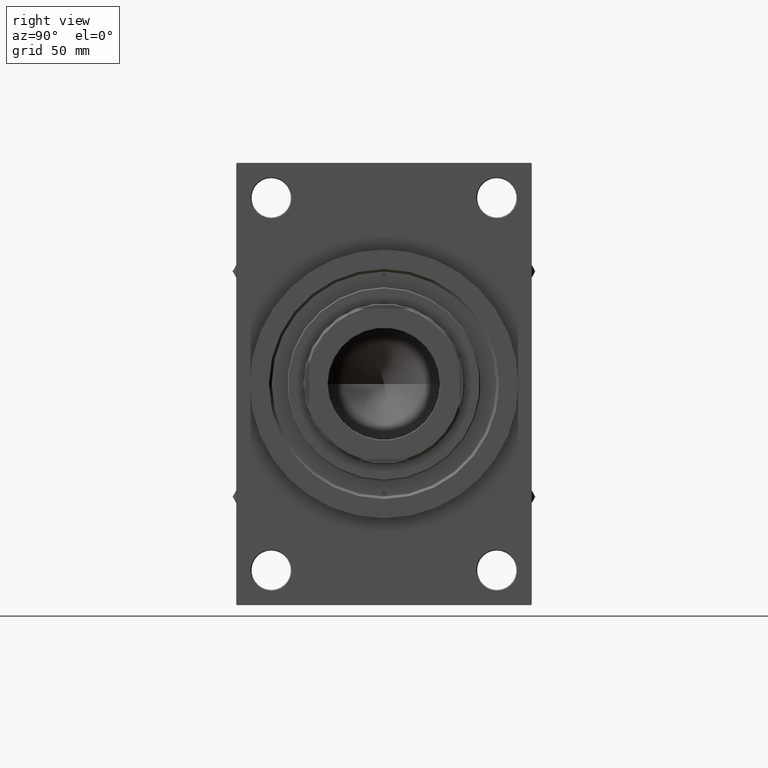
[diagram: clean part render]
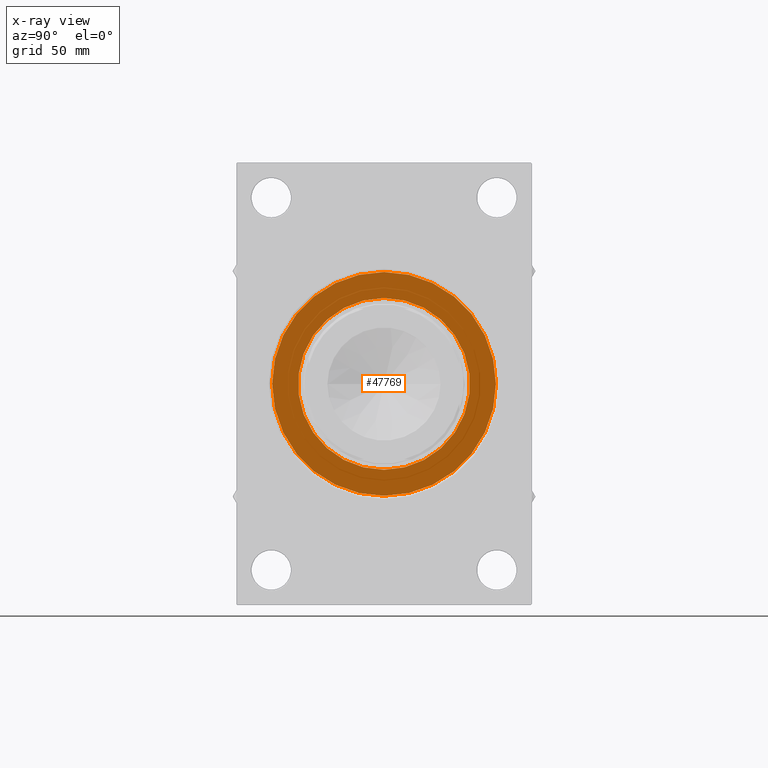
[diagram: x-ray — body ghosted, one internal face saturated and labeled with its STEP entity id]
A machine part, right view, then the same camera in x-ray: the body is ghosted and one INTERNAL B-rep face — a face not visible from any outside direction — is saturated and labeled: STEP entity #47769.
In plain terms, the highlighted planar face has unit normal (-1, 0, 0).
Its self-contained STEP definition (entity closure, byte-faithful):
#1778 = CIRCLE ( 'NONE', #25044, 48.00000000000000711 ) ;
#2197 = CARTESIAN_POINT ( 'NONE',  ( 139.0000000000000000, 0.000000000000000000, 0.000000000000000000 ) ) ;
#3073 = ORIENTED_EDGE ( 'NONE', *, *, #9671, .F. ) ;
#5547 = AXIS2_PLACEMENT_3D ( 'NONE', #28714, #14866, #47375 ) ;
#5861 = DIRECTION ( 'NONE',  ( 0.000000000000000000, 0.000000000000000000, -1.000000000000000000 ) ) ;
#6529 = AXIS2_PLACEMENT_3D ( 'NONE', #45771, #16190, #30985 ) ;
#6661 = EDGE_CURVE ( 'NONE', #23607, #23384, #19513, .T. ) ;
#7355 = AXIS2_PLACEMENT_3D ( 'NONE', #2197, #47538, #9726 ) ;
#8435 = ORIENTED_EDGE ( 'NONE', *, *, #12976, .F. ) ;
#9482 = FACE_BOUND ( 'NONE', #32160, .T. ) ;
#9671 = EDGE_CURVE ( 'NONE', #23384, #23607, #1778, .T. ) ;
#9673 = AXIS2_PLACEMENT_3D ( 'NONE', #42479, #24797, #5861 ) ;
#9726 = DIRECTION ( 'NONE',  ( -0.000000000000000000, 0.000000000000000000, 1.000000000000000000 ) ) ;
#11854 = CARTESIAN_POINT ( 'NONE',  ( 139.0000000000000000, 0.000000000000000000, -48.00000000000000711 ) ) ;
#12976 = EDGE_CURVE ( 'NONE', #30996, #26780, #17408, .T. ) ;
#14866 = DIRECTION ( 'NONE',  ( -1.000000000000000000, 0.000000000000000000, -0.000000000000000000 ) ) ;
#16112 = CARTESIAN_POINT ( 'NONE',  ( 139.0000000000000000, 5.051957280705745584E-15, -62.50000000000000000 ) ) ;
#16190 = DIRECTION ( 'NONE',  ( 1.000000000000000000, 0.000000000000000000, 0.000000000000000000 ) ) ;
#17408 = CIRCLE ( 'NONE', #6529, 62.50000000000000000 ) ;
#17492 = PLANE ( 'NONE',  #7355 ) ;
#17737 = EDGE_CURVE ( 'NONE', #26780, #30996, #30588, .T. ) ;
#19513 = CIRCLE ( 'NONE', #5547, 48.00000000000000711 ) ;
#21800 = DIRECTION ( 'NONE',  ( 0.000000000000000000, 0.000000000000000000, 1.000000000000000000 ) ) ;
#22245 = ORIENTED_EDGE ( 'NONE', *, *, #6661, .F. ) ;
#23384 = VERTEX_POINT ( 'NONE', #11854 ) ;
#23607 = VERTEX_POINT ( 'NONE', #37725 ) ;
#24797 = DIRECTION ( 'NONE',  ( 1.000000000000000000, 0.000000000000000000, 0.000000000000000000 ) ) ;
#25044 = AXIS2_PLACEMENT_3D ( 'NONE', #29309, #25925, #21800 ) ;
#25925 = DIRECTION ( 'NONE',  ( -1.000000000000000000, 0.000000000000000000, -0.000000000000000000 ) ) ;
#26780 = VERTEX_POINT ( 'NONE', #16112 ) ;
#28714 = CARTESIAN_POINT ( 'NONE',  ( 139.0000000000000000, 0.000000000000000000, 0.000000000000000000 ) ) ;
#29309 = CARTESIAN_POINT ( 'NONE',  ( 139.0000000000000000, 0.000000000000000000, 0.000000000000000000 ) ) ;
#30588 = CIRCLE ( 'NONE', #9673, 62.50000000000000000 ) ;
#30985 = DIRECTION ( 'NONE',  ( 0.000000000000000000, 0.000000000000000000, -1.000000000000000000 ) ) ;
#30996 = VERTEX_POINT ( 'NONE', #45132 ) ;
#31472 = ORIENTED_EDGE ( 'NONE', *, *, #17737, .F. ) ;
#32160 = EDGE_LOOP ( 'NONE', ( #3073, #22245 ) ) ;
#32755 = FACE_OUTER_BOUND ( 'NONE', #42453, .T. ) ;
#37725 = CARTESIAN_POINT ( 'NONE',  ( 139.0000000000000000, 5.878304635907296578E-15, 48.00000000000000711 ) ) ;
#42453 = EDGE_LOOP ( 'NONE', ( #8435, #31472 ) ) ;
#42479 = CARTESIAN_POINT ( 'NONE',  ( 139.0000000000000000, -2.602085213965210642E-15, 0.000000000000000000 ) ) ;
#45132 = CARTESIAN_POINT ( 'NONE',  ( 139.0000000000000000, -2.602085213965210642E-15, 62.50000000000000000 ) ) ;
#45771 = CARTESIAN_POINT ( 'NONE',  ( 139.0000000000000000, -2.602085213965210642E-15, 0.000000000000000000 ) ) ;
#47375 = DIRECTION ( 'NONE',  ( 0.000000000000000000, 0.000000000000000000, 1.000000000000000000 ) ) ;
#47538 = DIRECTION ( 'NONE',  ( -1.000000000000000000, 0.000000000000000000, -0.000000000000000000 ) ) ;
#47769 = ADVANCED_FACE ( 'NONE', ( #9482, #32755 ), #17492, .T. ) ;